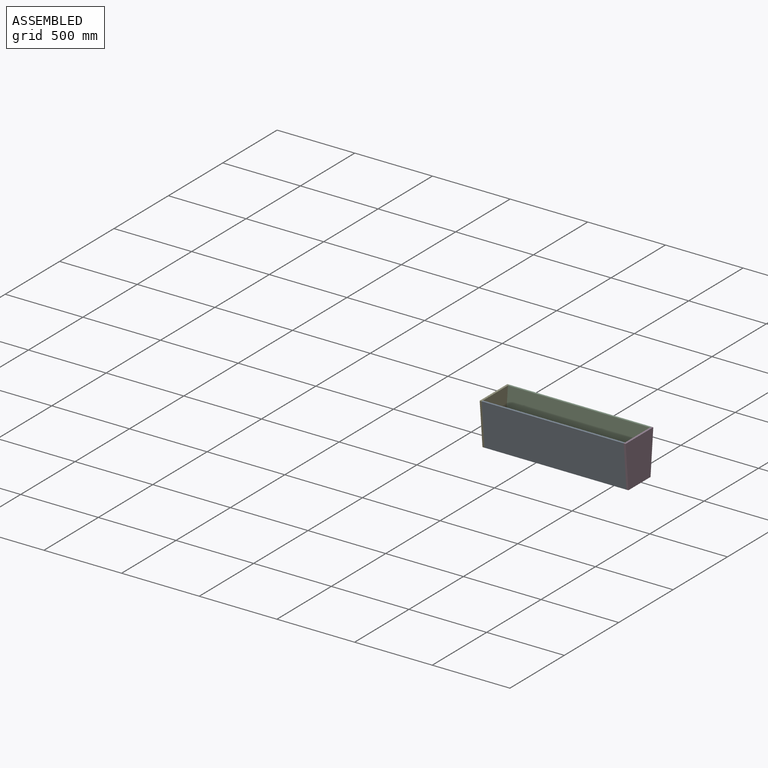
[diagram: assembled view]
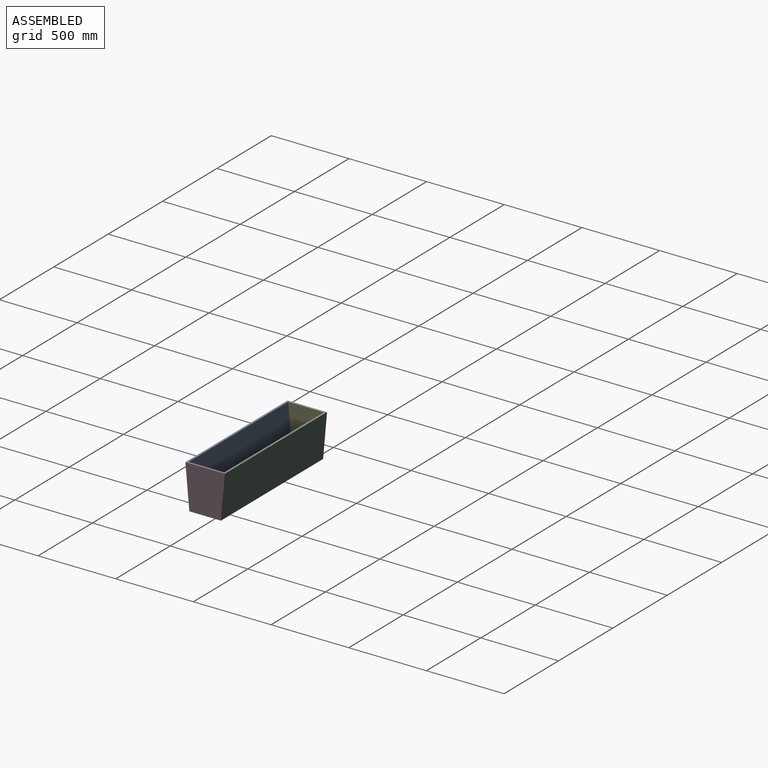
[diagram: assembled view, second angle]
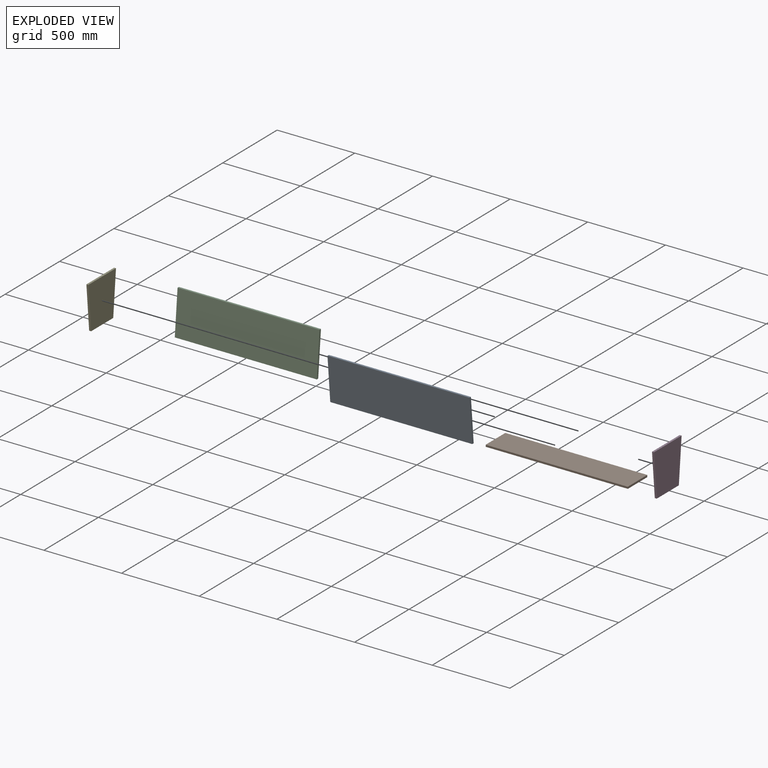
[diagram: exploded view]
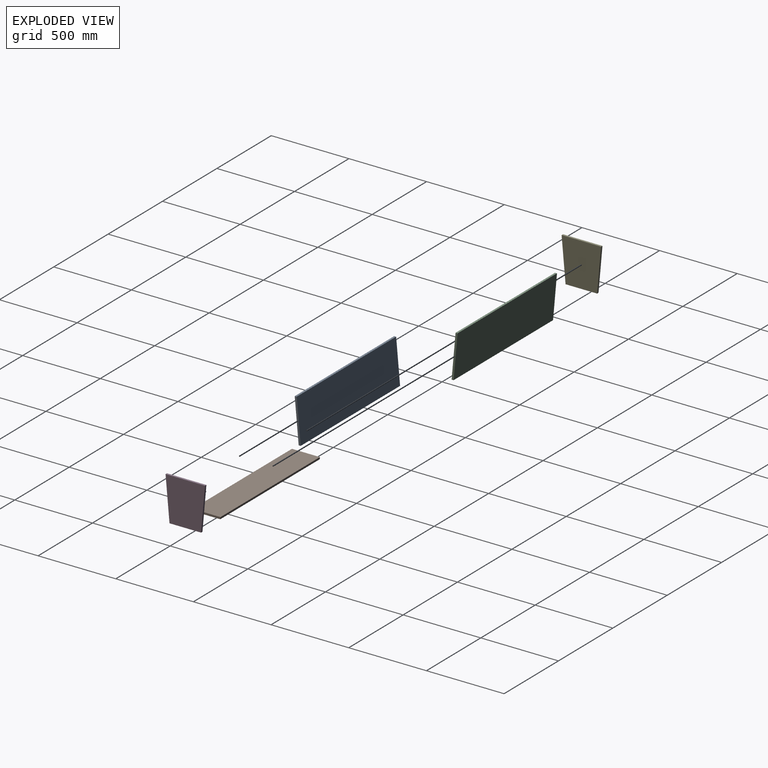
[diagram: exploded view, second angle]
ASSEMBLY  parts=5 mates=4
PART A: 6 faces, bbox 914.4x38.2x279.4 mm
  f0: plane 914.4x12.75mm, normal (0,0,1), area 11660.8mm2, adj f1,f3,f4,f5
  f1: plane 914.4x279.4mm, normal (0,-1,-0.09), area 256536.9mm2, adj f0,f2,f4,f5
  f2: plane 914.4x12.75mm, normal (0,0,-1), area 11660.8mm2, adj f1,f3,f4,f5
  f3: plane 914.4x279.4mm, normal (0,1,0.09), area 256536.9mm2, adj f0,f2,f4,f5
  f4: plane 279.4x38.15mm, normal (1,0,0), area 3563mm2, adj f0,f1,f2,f3
  f5: plane 279.4x38.15mm, normal (-1,0,0), area 3563mm2, adj f0,f1,f2,f3
PART B: 6 faces, bbox 914.4x180x12.7 mm
  f0: plane 914.4x180.01mm, normal (0,0,1), area 164601mm2, adj f1,f3,f4,f5
  f1: plane 914.4x12.7mm, normal (0,-1,-0.09), area 11660.8mm2, adj f0,f2,f4,f5
  f2: plane 914.4x177.7mm, normal (0,0,-1), area 162489.5mm2, adj f1,f3,f4,f5
  f3: plane 914.4x12.7mm, normal (0,1,-0.09), area 11660.8mm2, adj f0,f2,f4,f5
  f4: plane 180.01x12.7mm, normal (1,0,0), area 2271.5mm2, adj f0,f1,f2,f3
  f5: plane 180.01x12.7mm, normal (-1,0,0), area 2271.5mm2, adj f0,f1,f2,f3
PART C: same geometry as A
PART D: 6 faces, bbox 254x12.7x279.4 mm
  f0: plane 254x12.7mm, normal (0,0,1), area 3225.8mm2, adj f1,f3,f4,f5
  f1: plane 279.4x25.4mm, normal (-1,0,-0.09), area 3563mm2, adj f0,f2,f4,f5
  f2: plane 203.2x12.7mm, normal (0,0,-1), area 2580.6mm2, adj f1,f3,f4,f5
  f3: plane 279.4x25.4mm, normal (1,0,-0.09), area 3563mm2, adj f0,f2,f4,f5
  f4: plane 279.4x254mm, normal (0,-1,0), area 63870.8mm2, adj f0,f1,f2,f3
  f5: plane 279.4x254mm, normal (0,1,0), area 63870.8mm2, adj f0,f1,f2,f3
PART E: same geometry as D
PLACE A t=(644.88,-171.34,119.39)mm
PLACE B t=(644.88,-44.34,132.09)mm
PLACE C rot(axis=(0,0,-1),180deg) t=(644.88,82.66,119.39)mm
PLACE D rot(axis=(0,0,-1),90deg) t=(1114.78,-44.34,119.39)mm
PLACE E rot(axis=(0,0,1),90deg) t=(174.98,-44.34,119.39)mm
MATE fastened E.f4 <-> A.f5  axis (1,0,0) through (187.68,-158.64,119.39)mm
MATE fastened B.f4 <-> D.f4  axis (1,0,0) through (1102.08,-44.34,-20.31)mm
MATE fastened A.f4 <-> D.f4  axis (1,0,0) through (1102.08,-158.64,119.39)mm
MATE fastened D.f4 <-> C.f5  axis (-1,0,0) through (1102.08,69.96,119.39)mm
